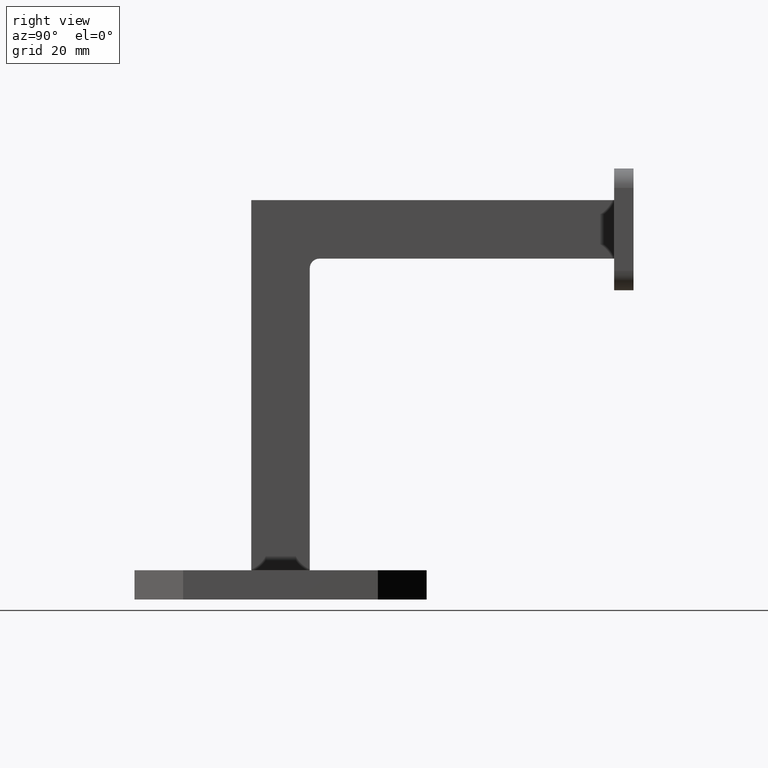
[diagram: clean part render]
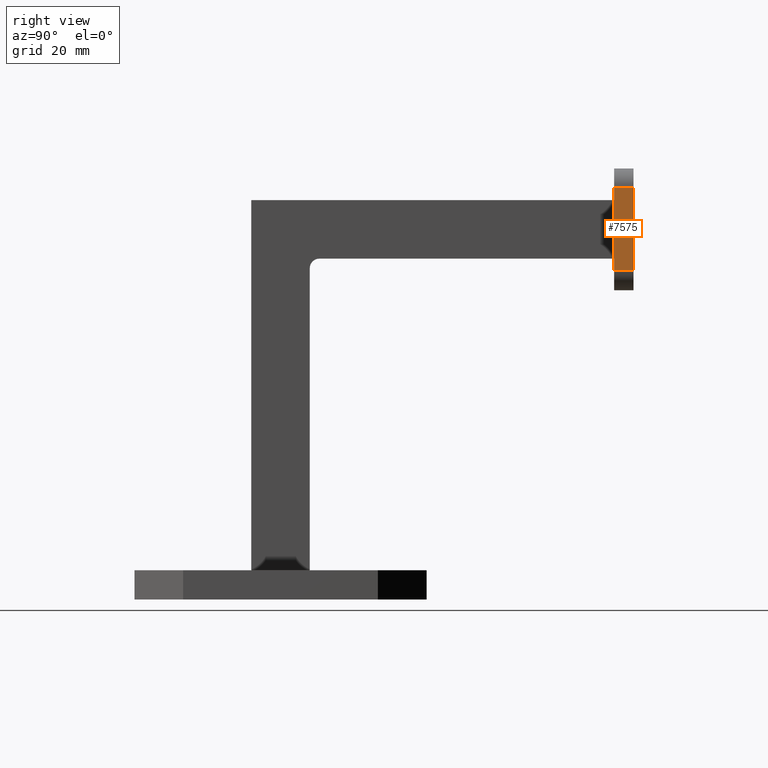
[diagram: same view with one face highlighted and labeled with its STEP entity id]
A machine part, right view. The second image highlights one B-rep face of the part: STEP entity #7575.
In plain terms, the highlighted planar face has unit normal (-1, 0, 0).
Its self-contained STEP definition (entity closure, byte-faithful):
#1407 = DIRECTION ( 'NONE',  ( 0.000000000000000000, -1.000000000000000000, 0.000000000000000000 ) ) ;
#2478 = VERTEX_POINT ( 'NONE', #3784 ) ;
#2899 = ORIENTED_EDGE ( 'NONE', *, *, #7984, .T. ) ;
#3058 = VECTOR ( 'NONE', #6755, 1000.000000000000000 ) ;
#3212 = LINE ( 'NONE', #7168, #23150 ) ;
#3784 = CARTESIAN_POINT ( 'NONE',  ( 32.50000000000000000, 2.000000000000001776, -8.500000000000007105 ) ) ;
#4942 = CARTESIAN_POINT ( 'NONE',  ( 32.50000000000000000, 2.000000000000001776, 8.499999999999992895 ) ) ;
#5031 = DIRECTION ( 'NONE',  ( 0.000000000000000000, 0.000000000000000000, 1.000000000000000000 ) ) ;
#5315 = VECTOR ( 'NONE', #1407, 1000.000000000000000 ) ;
#6755 = DIRECTION ( 'NONE',  ( -0.000000000000000000, 1.000000000000000000, -0.000000000000000000 ) ) ;
#6864 = CARTESIAN_POINT ( 'NONE',  ( 32.50000000000000000, 2.000000000000001776, -12.50000000000000355 ) ) ;
#7168 = CARTESIAN_POINT ( 'NONE',  ( 32.50000000000000000, 2.000000000000001776, -12.50000000000000355 ) ) ;
#7395 = CARTESIAN_POINT ( 'NONE',  ( 32.50000000000000000, -2.000000000000001776, -12.50000000000000355 ) ) ;
#7575 = ADVANCED_FACE ( 'NONE', ( #12742 ), #12417, .F. ) ;
#7984 = EDGE_CURVE ( 'NONE', #23243, #2478, #13031, .T. ) ;
#8574 = EDGE_LOOP ( 'NONE', ( #18544, #2899, #9726, #15085 ) ) ;
#8621 = CARTESIAN_POINT ( 'NONE',  ( 32.50000000000000000, 2.000000000000001776, -8.500000000000007105 ) ) ;
#9009 = DIRECTION ( 'NONE',  ( -0.000000000000000000, -0.000000000000000000, -1.000000000000000000 ) ) ;
#9165 = CARTESIAN_POINT ( 'NONE',  ( 32.50000000000000000, -2.000000000000001776, 8.499999999999992895 ) ) ;
#9726 = ORIENTED_EDGE ( 'NONE', *, *, #15449, .F. ) ;
#11479 = VERTEX_POINT ( 'NONE', #4942 ) ;
#12417 = PLANE ( 'NONE',  #24091 ) ;
#12560 = EDGE_CURVE ( 'NONE', #11479, #13887, #19975, .T. ) ;
#12742 = FACE_OUTER_BOUND ( 'NONE', #8574, .T. ) ;
#13031 = LINE ( 'NONE', #8621, #3058 ) ;
#13887 = VERTEX_POINT ( 'NONE', #9165 ) ;
#15085 = ORIENTED_EDGE ( 'NONE', *, *, #12560, .T. ) ;
#15449 = EDGE_CURVE ( 'NONE', #11479, #2478, #3212, .T. ) ;
#15849 = CARTESIAN_POINT ( 'NONE',  ( 32.50000000000000000, -2.000000000000001776, -8.500000000000007105 ) ) ;
#16336 = LINE ( 'NONE', #7395, #17228 ) ;
#17228 = VECTOR ( 'NONE', #20648, 1000.000000000000000 ) ;
#18544 = ORIENTED_EDGE ( 'NONE', *, *, #22648, .T. ) ;
#19975 = LINE ( 'NONE', #21865, #5315 ) ;
#20648 = DIRECTION ( 'NONE',  ( -0.000000000000000000, -0.000000000000000000, -1.000000000000000000 ) ) ;
#21830 = DIRECTION ( 'NONE',  ( -1.000000000000000000, 0.000000000000000000, 0.000000000000000000 ) ) ;
#21865 = CARTESIAN_POINT ( 'NONE',  ( 32.50000000000000000, 2.000000000000001776, 8.499999999999992895 ) ) ;
#22648 = EDGE_CURVE ( 'NONE', #13887, #23243, #16336, .T. ) ;
#23150 = VECTOR ( 'NONE', #9009, 1000.000000000000000 ) ;
#23243 = VERTEX_POINT ( 'NONE', #15849 ) ;
#24091 = AXIS2_PLACEMENT_3D ( 'NONE', #6864, #21830, #5031 ) ;